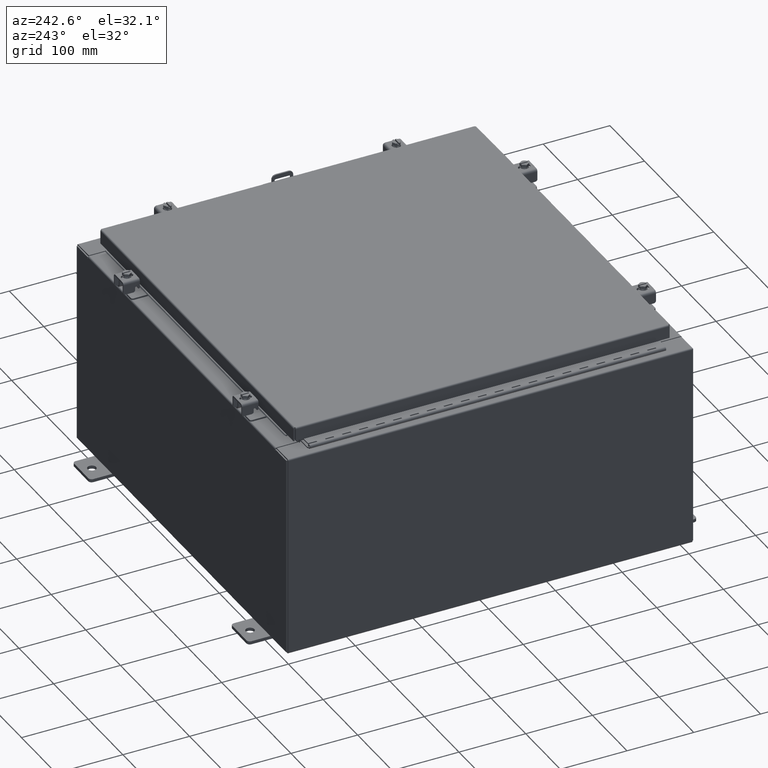
[diagram: clean part render]
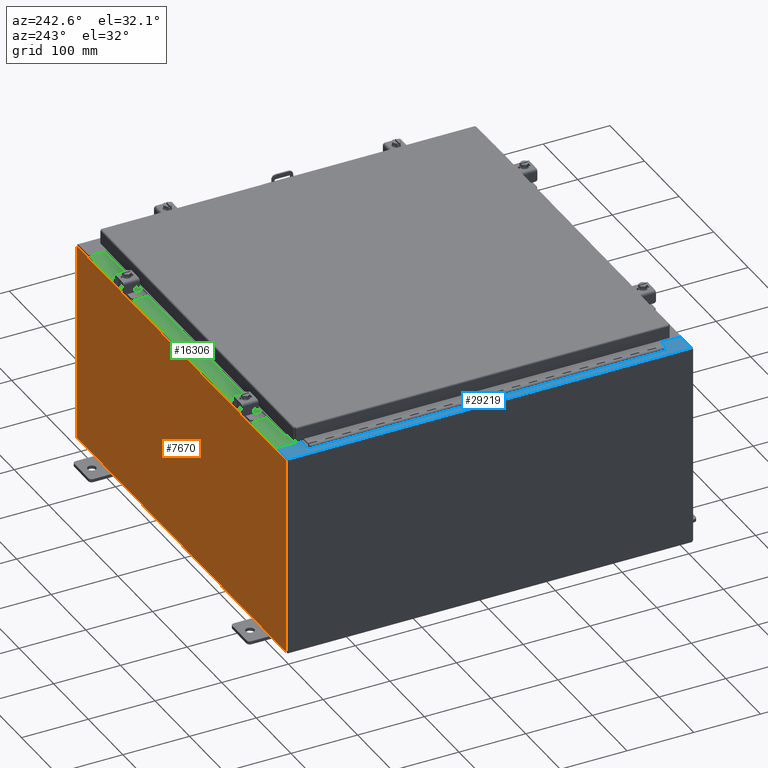
[diagram: same view with three faces highlighted in distinct colors, each labeled with its STEP entity id]
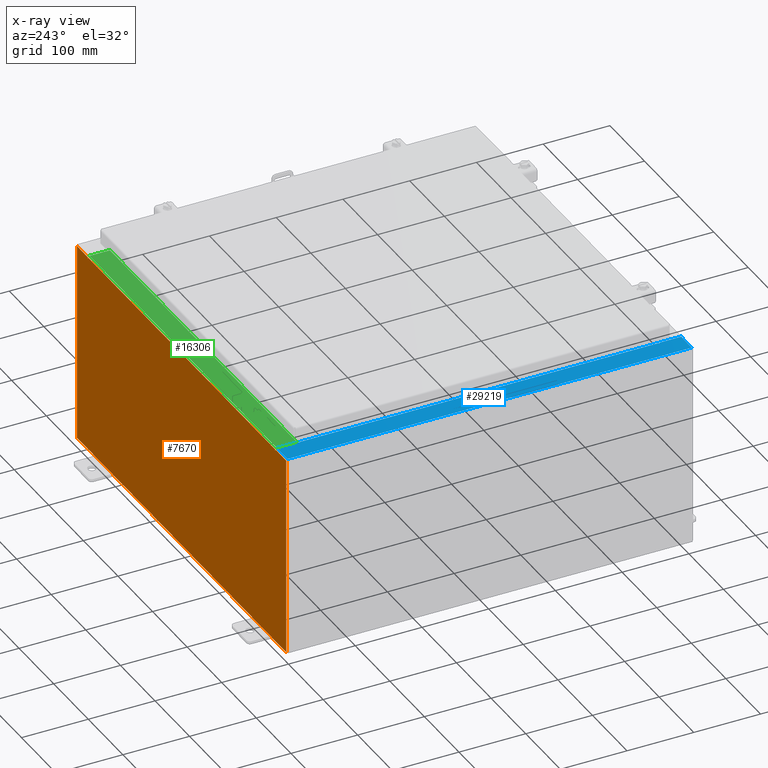
[diagram: x-ray of the same camera — body ghosted, the three highlighted faces saturated]
A machine part, auxiliary view with three faces highlighted in distinct colors.
The next image is the same camera in x-ray (body ghosted, the three faces saturated) — at least one of them is partly hidden behind the body in this view.
Their STEP definitions:

[orange] entity #7670 — the highlighted planar face has unit normal (0, -1, 0).
#633 = CARTESIAN_POINT ( 'NONE',  ( 11.92530000000000000, 0.0000000000000000000, 5.925300000000001800 ) ) ;
#679 = CARTESIAN_POINT ( 'NONE',  ( 10.63720000000000400, 0.0000000000000000000, 5.912300000000001000 ) ) ;
#1123 = CARTESIAN_POINT ( 'NONE',  ( -10.67455000000000200, 0.0000000000000000000, 5.874950000000001000 ) ) ;
#1691 = LINE ( 'NONE', #21944, #2434 ) ;
#1964 = CARTESIAN_POINT ( 'NONE',  ( 10.67455000000000200, 0.0000000000000000000, 5.925300000000001800 ) ) ;
#2021 = CARTESIAN_POINT ( 'NONE',  ( -10.67455000000000200, -0.0000000000000000000, 0.0000000000000000000 ) ) ;
#2077 = CIRCLE ( 'NONE', #12906, 0.01867499999999949400 ) ;
#2183 = EDGE_CURVE ( 'NONE', #28677, #2289, #12509, .T. ) ;
#2286 = EDGE_CURVE ( 'NONE', #28677, #11795, #29342, .T. ) ;
#2289 = VERTEX_POINT ( 'NONE', #7420 ) ;
#2434 = VECTOR ( 'NONE', #4468, 39.37007874015748100 ) ;
#2761 = VERTEX_POINT ( 'NONE', #9044 ) ;
#3167 = ORIENTED_EDGE ( 'NONE', *, *, #22473, .T. ) ;
#3430 = DIRECTION ( 'NONE',  ( 0.0000000000000000000, 0.0000000000000000000, 1.000000000000000000 ) ) ;
#3511 = DIRECTION ( 'NONE',  ( 1.000000000000000000, 0.0000000000000000000, 4.581600452255731000E-017 ) ) ;
#3724 = DIRECTION ( 'NONE',  ( 0.0000000000000000000, 0.0000000000000000000, -1.000000000000000000 ) ) ;
#4163 = CIRCLE ( 'NONE', #6991, 0.01867499999999949400 ) ;
#4232 = EDGE_CURVE ( 'NONE', #2289, #18012, #4163, .T. ) ;
#4395 = FACE_OUTER_BOUND ( 'NONE', #7921, .T. ) ;
#4468 = DIRECTION ( 'NONE',  ( -0.0000000000000000000, -0.0000000000000000000, 1.000000000000000000 ) ) ;
#4641 = ORIENTED_EDGE ( 'NONE', *, *, #31382, .T. ) ;
#4887 = EDGE_CURVE ( 'NONE', #2761, #18634, #6084, .T. ) ;
#5821 = CARTESIAN_POINT ( 'NONE',  ( -11.92530000000000000, 0.0000000000000000000, 5.925300000000000000 ) ) ;
#6063 = DIRECTION ( 'NONE',  ( 1.000000000000000000, 0.0000000000000000000, 0.0000000000000000000 ) ) ;
#6084 = LINE ( 'NONE', #8697, #18566 ) ;
#6146 = CARTESIAN_POINT ( 'NONE',  ( -10.63720000000000400, -0.0000000000000000000, 0.0000000000000000000 ) ) ;
#6991 = AXIS2_PLACEMENT_3D ( 'NONE', #24714, #28069, #22393 ) ;
#7324 = EDGE_CURVE ( 'NONE', #27155, #13650, #2077, .T. ) ;
#7420 = CARTESIAN_POINT ( 'NONE',  ( 10.67455000000000200, 0.0000000000000000000, 5.874950000000001000 ) ) ;
#7670 = ADVANCED_FACE ( 'NONE', ( #4395 ), #17274, .F. ) ;
#7921 = EDGE_LOOP ( 'NONE', ( #20355, #21059, #8593, #28065, #10799, #32113, #26033, #13954, #3167, #24356, #26104, #4641 ) ) ;
#8593 = ORIENTED_EDGE ( 'NONE', *, *, #26380, .F. ) ;
#8697 = CARTESIAN_POINT ( 'NONE',  ( -11.92530000000000000, 0.0000000000000000000, -5.925299999999999100 ) ) ;
#9044 = CARTESIAN_POINT ( 'NONE',  ( 11.92530000000000000, 0.0000000000000000000, -5.925299999999999100 ) ) ;
#9082 = CARTESIAN_POINT ( 'NONE',  ( -11.92530000000000000, 0.0000000000000000000, 5.925300000000000000 ) ) ;
#10604 = DIRECTION ( 'NONE',  ( 1.000000000000000000, 0.0000000000000000000, 4.581600452255731000E-017 ) ) ;
#10799 = ORIENTED_EDGE ( 'NONE', *, *, #27759, .F. ) ;
#11582 = VERTEX_POINT ( 'NONE', #22263 ) ;
#11795 = VERTEX_POINT ( 'NONE', #633 ) ;
#12112 = LINE ( 'NONE', #21753, #23843 ) ;
#12509 = LINE ( 'NONE', #25550, #31762 ) ;
#12906 = AXIS2_PLACEMENT_3D ( 'NONE', #29683, #29645, #29606 ) ;
#12918 = DIRECTION ( 'NONE',  ( -1.000000000000000000, -0.0000000000000000000, -0.0000000000000000000 ) ) ;
#12994 = EDGE_CURVE ( 'NONE', #15599, #19428, #26759, .T. ) ;
#13650 = VERTEX_POINT ( 'NONE', #1123 ) ;
#13954 = ORIENTED_EDGE ( 'NONE', *, *, #2286, .T. ) ;
#14175 = VECTOR ( 'NONE', #3511, 39.37007874015748100 ) ;
#14193 = CARTESIAN_POINT ( 'NONE',  ( -11.92530000000000000, 0.0000000000000000000, 5.925300000000000000 ) ) ;
#15306 = CARTESIAN_POINT ( 'NONE',  ( -10.63720000000000400, -1.707404996040164500E-016, 5.912300000000001000 ) ) ;
#15599 = VERTEX_POINT ( 'NONE', #15306 ) ;
#16017 = VECTOR ( 'NONE', #10604, 39.37007874015748100 ) ;
#17176 = DIRECTION ( 'NONE',  ( 0.0000000000000000000, -0.0000000000000000000, -1.000000000000000000 ) ) ;
#17274 = PLANE ( 'NONE',  #31057 ) ;
#17346 = CARTESIAN_POINT ( 'NONE',  ( 0.0000000000000000000, 0.0000000000000000000, 0.0000000000000000000 ) ) ;
#17456 = VECTOR ( 'NONE', #32046, 39.37007874015748100 ) ;
#17962 = DIRECTION ( 'NONE',  ( 0.0000000000000000000, -1.000000000000000000, 0.0000000000000000000 ) ) ;
#18012 = VERTEX_POINT ( 'NONE', #18515 ) ;
#18242 = LINE ( 'NONE', #2021, #17456 ) ;
#18489 = CARTESIAN_POINT ( 'NONE',  ( -10.63720000000000400, -1.707404996040164500E-016, 5.912300000000001000 ) ) ;
#18515 = CARTESIAN_POINT ( 'NONE',  ( 10.63720000000000400, 0.0000000000000000000, 5.874950000000001000 ) ) ;
#18566 = VECTOR ( 'NONE', #12918, 39.37007874015748100 ) ;
#18634 = VERTEX_POINT ( 'NONE', #24535 ) ;
#19292 = VECTOR ( 'NONE', #6063, 39.37007874015748100 ) ;
#19428 = VERTEX_POINT ( 'NONE', #679 ) ;
#19773 = VECTOR ( 'NONE', #3724, 39.37007874015748100 ) ;
#20355 = ORIENTED_EDGE ( 'NONE', *, *, #25955, .F. ) ;
#20871 = CARTESIAN_POINT ( 'NONE',  ( 10.63720000000000400, 0.0000000000000000000, 0.0000000000000000000 ) ) ;
#21059 = ORIENTED_EDGE ( 'NONE', *, *, #7324, .F. ) ;
#21753 = CARTESIAN_POINT ( 'NONE',  ( 11.92530000000000000, 0.0000000000000000000, 5.925300000000001800 ) ) ;
#21944 = CARTESIAN_POINT ( 'NONE',  ( -11.92530000000000000, 0.0000000000000000000, 5.925300000000000000 ) ) ;
#22263 = CARTESIAN_POINT ( 'NONE',  ( -10.67455000000000200, 0.0000000000000000000, 5.925300000000000000 ) ) ;
#22393 = DIRECTION ( 'NONE',  ( 0.0000000000000000000, 0.0000000000000000000, -1.000000000000000000 ) ) ;
#22473 = EDGE_CURVE ( 'NONE', #11795, #2761, #12112, .T. ) ;
#23843 = VECTOR ( 'NONE', #29334, 39.37007874015748100 ) ;
#24356 = ORIENTED_EDGE ( 'NONE', *, *, #4887, .T. ) ;
#24535 = CARTESIAN_POINT ( 'NONE',  ( -11.92530000000000000, 0.0000000000000000000, -5.925299999999999100 ) ) ;
#24714 = CARTESIAN_POINT ( 'NONE',  ( 10.65587500000000200, 0.0000000000000000000, 5.874950000000001000 ) ) ;
#25550 = CARTESIAN_POINT ( 'NONE',  ( 10.67455000000000200, 0.0000000000000000000, 0.0000000000000000000 ) ) ;
#25955 = EDGE_CURVE ( 'NONE', #13650, #11582, #18242, .T. ) ;
#26033 = ORIENTED_EDGE ( 'NONE', *, *, #2183, .F. ) ;
#26104 = ORIENTED_EDGE ( 'NONE', *, *, #31663, .T. ) ;
#26380 = EDGE_CURVE ( 'NONE', #15599, #27155, #27233, .T. ) ;
#26389 = VECTOR ( 'NONE', #3430, 39.37007874015748100 ) ;
#26759 = LINE ( 'NONE', #18489, #19292 ) ;
#26830 = DIRECTION ( 'NONE',  ( 0.0000000000000000000, 0.0000000000000000000, -1.000000000000000000 ) ) ;
#27150 = LINE ( 'NONE', #20871, #26389 ) ;
#27155 = VERTEX_POINT ( 'NONE', #30495 ) ;
#27233 = LINE ( 'NONE', #6146, #19773 ) ;
#27432 = LINE ( 'NONE', #5821, #14175 ) ;
#27759 = EDGE_CURVE ( 'NONE', #18012, #19428, #27150, .T. ) ;
#28065 = ORIENTED_EDGE ( 'NONE', *, *, #12994, .T. ) ;
#28069 = DIRECTION ( 'NONE',  ( -0.0000000000000000000, 1.000000000000000000, -0.0000000000000000000 ) ) ;
#28677 = VERTEX_POINT ( 'NONE', #1964 ) ;
#29334 = DIRECTION ( 'NONE',  ( 0.0000000000000000000, 0.0000000000000000000, -1.000000000000000000 ) ) ;
#29342 = LINE ( 'NONE', #9082, #16017 ) ;
#29606 = DIRECTION ( 'NONE',  ( 0.0000000000000000000, 0.0000000000000000000, -1.000000000000000000 ) ) ;
#29645 = DIRECTION ( 'NONE',  ( -0.0000000000000000000, 1.000000000000000000, -0.0000000000000000000 ) ) ;
#29683 = CARTESIAN_POINT ( 'NONE',  ( -10.65587500000000200, 0.0000000000000000000, 5.874950000000001000 ) ) ;
#30495 = CARTESIAN_POINT ( 'NONE',  ( -10.63720000000000400, -0.0000000000000000000, 5.874950000000001000 ) ) ;
#31057 = AXIS2_PLACEMENT_3D ( 'NONE', #17346, #17962, #17176 ) ;
#31382 = EDGE_CURVE ( 'NONE', #32302, #11582, #27432, .T. ) ;
#31663 = EDGE_CURVE ( 'NONE', #18634, #32302, #1691, .T. ) ;
#31762 = VECTOR ( 'NONE', #26830, 39.37007874015748100 ) ;
#32046 = DIRECTION ( 'NONE',  ( 0.0000000000000000000, 0.0000000000000000000, 1.000000000000000000 ) ) ;
#32113 = ORIENTED_EDGE ( 'NONE', *, *, #4232, .F. ) ;
#32302 = VERTEX_POINT ( 'NONE', #14193 ) ;

[blue] entity #29219 — the highlighted planar face has unit normal (0, 0, -1).
#229 = ORIENTED_EDGE ( 'NONE', *, *, #5740, .F. ) ;
#248 = VERTEX_POINT ( 'NONE', #26468 ) ;
#249 = EDGE_CURVE ( 'NONE', #30464, #4828, #28888, .T. ) ;
#319 = VECTOR ( 'NONE', #19858, 39.37007874015748100 ) ;
#890 = CARTESIAN_POINT ( 'NONE',  ( -10.69970000000004600, 0.0000000000000000000, 11.92530000000000900 ) ) ;
#1139 = CIRCLE ( 'NONE', #1538, 0.01867499999999949400 ) ;
#1194 = CARTESIAN_POINT ( 'NONE',  ( -10.75005000000004600, -10.61242499999998900, 11.92530000000000900 ) ) ;
#1455 = CIRCLE ( 'NONE', #16562, 0.01867499999999949400 ) ;
#1538 = AXIS2_PLACEMENT_3D ( 'NONE', #20653, #5714, #23183 ) ;
#1936 = ORIENTED_EDGE ( 'NONE', *, *, #30613, .F. ) ;
#2038 = FACE_OUTER_BOUND ( 'NONE', #14360, .T. ) ;
#2075 = VECTOR ( 'NONE', #15018, 39.37007874015748100 ) ;
#2929 = LINE ( 'NONE', #6162, #23666 ) ;
#3380 = EDGE_CURVE ( 'NONE', #11300, #248, #6980, .T. ) ;
#3454 = ORIENTED_EDGE ( 'NONE', *, *, #29986, .T. ) ;
#3668 = DIRECTION ( 'NONE',  ( 1.000000000000000000, 0.0000000000000000000, 0.0000000000000000000 ) ) ;
#4301 = DIRECTION ( 'NONE',  ( -1.000000000000000000, 0.0000000000000000000, 0.0000000000000000000 ) ) ;
#4828 = VERTEX_POINT ( 'NONE', #14782 ) ;
#5071 = CARTESIAN_POINT ( 'NONE',  ( -10.69970000000004600, -10.63109999999999100, 11.92530000000000900 ) ) ;
#5493 = EDGE_CURVE ( 'NONE', #15499, #26307, #23285, .T. ) ;
#5714 = DIRECTION ( 'NONE',  ( -7.132762385546384700E-015, -0.0000000000000000000, 1.000000000000000000 ) ) ;
#5740 = EDGE_CURVE ( 'NONE', #32040, #14769, #2929, .T. ) ;
#6162 = CARTESIAN_POINT ( 'NONE',  ( -10.71270000000004800, -10.59374999999998900, 11.92530000000000900 ) ) ;
#6362 = CARTESIAN_POINT ( 'NONE',  ( -10.75005000000004600, 10.59374999999999800, 11.92530000000000900 ) ) ;
#6425 = PLANE ( 'NONE',  #20129 ) ;
#6538 = EDGE_CURVE ( 'NONE', #15499, #11768, #22431, .T. ) ;
#6739 = ORIENTED_EDGE ( 'NONE', *, *, #22084, .F. ) ;
#6980 = LINE ( 'NONE', #18098, #319 ) ;
#7224 = LINE ( 'NONE', #890, #20460 ) ;
#7865 = ORIENTED_EDGE ( 'NONE', *, *, #5493, .T. ) ;
#8155 = VECTOR ( 'NONE', #28227, 39.37007874015748100 ) ;
#8246 = LINE ( 'NONE', #12503, #14862 ) ;
#8742 = LINE ( 'NONE', #27475, #2075 ) ;
#9020 = ORIENTED_EDGE ( 'NONE', *, *, #3380, .F. ) ;
#9188 = VECTOR ( 'NONE', #26351, 39.37007874015748100 ) ;
#9250 = ORIENTED_EDGE ( 'NONE', *, *, #19492, .T. ) ;
#9391 = EDGE_CURVE ( 'NONE', #14431, #11300, #1139, .T. ) ;
#10774 = ORIENTED_EDGE ( 'NONE', *, *, #19105, .F. ) ;
#11300 = VERTEX_POINT ( 'NONE', #6362 ) ;
#11439 = CARTESIAN_POINT ( 'NONE',  ( -8.532114493236847900E-014, 0.0000000000000000000, 11.92530000000008500 ) ) ;
#11768 = VERTEX_POINT ( 'NONE', #20382 ) ;
#11889 = VECTOR ( 'NONE', #17656, 39.37007874015748100 ) ;
#12503 = CARTESIAN_POINT ( 'NONE',  ( -10.71270000000004800, 10.59374999999999300, 11.92530000000000900 ) ) ;
#12827 = DIRECTION ( 'NONE',  ( -1.000000000000000000, 0.0000000000000000000, 0.0000000000000000000 ) ) ;
#13464 = CARTESIAN_POINT ( 'NONE',  ( -10.69970000000004600, -11.92530000000000000, 11.92530000000000900 ) ) ;
#13964 = DIRECTION ( 'NONE',  ( -1.000000000000000000, 0.0000000000000000000, -7.132762385546384700E-015 ) ) ;
#13988 = VERTEX_POINT ( 'NONE', #27311 ) ;
#14360 = EDGE_LOOP ( 'NONE', ( #10774, #15961, #3454, #14557, #7865, #9250, #1936, #25093, #229, #6739, #9020, #26624 ) ) ;
#14431 = VERTEX_POINT ( 'NONE', #29062 ) ;
#14557 = ORIENTED_EDGE ( 'NONE', *, *, #6538, .F. ) ;
#14769 = VERTEX_POINT ( 'NONE', #25863 ) ;
#14782 = CARTESIAN_POINT ( 'NONE',  ( -10.69970000000004600, 11.92529999999999800, 11.92530000000000900 ) ) ;
#14862 = VECTOR ( 'NONE', #15014, 39.37007874015748100 ) ;
#15014 = DIRECTION ( 'NONE',  ( -0.0000000000000000000, -1.000000000000000000, -0.0000000000000000000 ) ) ;
#15018 = DIRECTION ( 'NONE',  ( 1.000000000000000000, 0.0000000000000000000, 0.0000000000000000000 ) ) ;
#15499 = VERTEX_POINT ( 'NONE', #26378 ) ;
#15961 = ORIENTED_EDGE ( 'NONE', *, *, #249, .T. ) ;
#16154 = CARTESIAN_POINT ( 'NONE',  ( -8.532114493236847900E-014, -11.92530000000000000, 11.92530000000008500 ) ) ;
#16562 = AXIS2_PLACEMENT_3D ( 'NONE', #1194, #18624, #3668 ) ;
#16969 = CARTESIAN_POINT ( 'NONE',  ( -10.69970000000004600, 10.63109999999999600, 11.92530000000000900 ) ) ;
#17357 = LINE ( 'NONE', #19246, #24840 ) ;
#17656 = DIRECTION ( 'NONE',  ( -1.000000000000000000, 0.0000000000000000000, -7.132762385546384700E-015 ) ) ;
#18034 = EDGE_CURVE ( 'NONE', #14769, #13988, #1455, .T. ) ;
#18098 = CARTESIAN_POINT ( 'NONE',  ( -10.75005000000004600, 10.59374999999999800, 11.92530000000000900 ) ) ;
#18341 = DIRECTION ( 'NONE',  ( 0.0000000000000000000, 1.000000000000000000, 0.0000000000000000000 ) ) ;
#18624 = DIRECTION ( 'NONE',  ( -7.132762385546384700E-015, -0.0000000000000000000, 1.000000000000000000 ) ) ;
#19105 = EDGE_CURVE ( 'NONE', #30464, #14431, #17357, .T. ) ;
#19246 = CARTESIAN_POINT ( 'NONE',  ( -10.69970000000004600, 10.63109999999999600, 11.92530000000000900 ) ) ;
#19492 = EDGE_CURVE ( 'NONE', #26307, #22139, #7224, .T. ) ;
#19635 = DIRECTION ( 'NONE',  ( 1.000000000000000000, -0.0000000000000000000, 7.132762385546384700E-015 ) ) ;
#19858 = DIRECTION ( 'NONE',  ( 1.000000000000000000, 0.0000000000000000000, 0.0000000000000000000 ) ) ;
#20129 = AXIS2_PLACEMENT_3D ( 'NONE', #11439, #28953, #13964 ) ;
#20382 = CARTESIAN_POINT ( 'NONE',  ( -11.91230000000004500, 11.92529999999999800, 11.92530000000000000 ) ) ;
#20460 = VECTOR ( 'NONE', #18341, 39.37007874015748100 ) ;
#20476 = CARTESIAN_POINT ( 'NONE',  ( -11.91230000000004500, 11.92529999999999800, 11.92530000000000000 ) ) ;
#20653 = CARTESIAN_POINT ( 'NONE',  ( -10.75005000000004600, 10.61242499999999800, 11.92530000000000900 ) ) ;
#20812 = CARTESIAN_POINT ( 'NONE',  ( -10.71270000000004800, -10.59374999999998900, 11.92530000000000900 ) ) ;
#22084 = EDGE_CURVE ( 'NONE', #248, #32040, #8246, .T. ) ;
#22139 = VERTEX_POINT ( 'NONE', #5071 ) ;
#22431 = LINE ( 'NONE', #20476, #9188 ) ;
#23183 = DIRECTION ( 'NONE',  ( 1.000000000000000000, 0.0000000000000000000, 0.0000000000000000000 ) ) ;
#23285 = LINE ( 'NONE', #16154, #29959 ) ;
#23666 = VECTOR ( 'NONE', #12827, 39.37007874015748100 ) ;
#24840 = VECTOR ( 'NONE', #4301, 39.37007874015748100 ) ;
#25093 = ORIENTED_EDGE ( 'NONE', *, *, #18034, .F. ) ;
#25395 = CARTESIAN_POINT ( 'NONE',  ( -10.69970000000004600, 0.0000000000000000000, 11.92530000000000900 ) ) ;
#25863 = CARTESIAN_POINT ( 'NONE',  ( -10.75005000000004600, -10.59374999999998900, 11.92530000000000900 ) ) ;
#26307 = VERTEX_POINT ( 'NONE', #13464 ) ;
#26351 = DIRECTION ( 'NONE',  ( -0.0000000000000000000, 1.000000000000000000, -0.0000000000000000000 ) ) ;
#26378 = CARTESIAN_POINT ( 'NONE',  ( -11.91230000000004500, -11.92530000000000000, 11.92530000000000000 ) ) ;
#26468 = CARTESIAN_POINT ( 'NONE',  ( -10.71270000000004800, 10.59374999999999800, 11.92530000000000900 ) ) ;
#26624 = ORIENTED_EDGE ( 'NONE', *, *, #9391, .F. ) ;
#27311 = CARTESIAN_POINT ( 'NONE',  ( -10.75005000000004600, -10.63109999999998800, 11.92530000000000900 ) ) ;
#27475 = CARTESIAN_POINT ( 'NONE',  ( -10.75005000000004600, -10.63109999999998800, 11.92530000000000900 ) ) ;
#28227 = DIRECTION ( 'NONE',  ( 0.0000000000000000000, 1.000000000000000000, 0.0000000000000000000 ) ) ;
#28888 = LINE ( 'NONE', #25395, #8155 ) ;
#28953 = DIRECTION ( 'NONE',  ( 7.132762385546384700E-015, 0.0000000000000000000, -1.000000000000000000 ) ) ;
#29062 = CARTESIAN_POINT ( 'NONE',  ( -10.75005000000004600, 10.63109999999999600, 11.92530000000000900 ) ) ;
#29219 = ADVANCED_FACE ( 'NONE', ( #2038 ), #6425, .F. ) ;
#29959 = VECTOR ( 'NONE', #19635, 39.37007874015748100 ) ;
#29986 = EDGE_CURVE ( 'NONE', #4828, #11768, #31915, .T. ) ;
#30164 = CARTESIAN_POINT ( 'NONE',  ( -8.532114493236847900E-014, 11.92529999999999800, 11.92530000000008500 ) ) ;
#30464 = VERTEX_POINT ( 'NONE', #16969 ) ;
#30613 = EDGE_CURVE ( 'NONE', #13988, #22139, #8742, .T. ) ;
#31915 = LINE ( 'NONE', #30164, #11889 ) ;
#32040 = VERTEX_POINT ( 'NONE', #20812 ) ;

[green] entity #16306 — the highlighted planar face has unit normal (0, 0, 1).
#611 = EDGE_LOOP ( 'NONE', ( #11649, #18594, #16427, #10653 ) ) ;
#627 = CARTESIAN_POINT ( 'NONE',  ( 10.63720000000000200, -1.287299999999998800, 6.000000000000006200 ) ) ;
#628 = CARTESIAN_POINT ( 'NONE',  ( -3.422455537835030400E-018, 1.610972251716582100E-014, 6.000000000000001800 ) ) ;
#836 = CARTESIAN_POINT ( 'NONE',  ( 10.63720000000000400, -1.287299999999998800, 6.000000000000003600 ) ) ;
#1406 = VERTEX_POINT ( 'NONE', #31317 ) ;
#3441 = LINE ( 'NONE', #6820, #23378 ) ;
#4644 = CARTESIAN_POINT ( 'NONE',  ( -3.422455537835030400E-018, -0.08770000000000026400, 6.000000000000001800 ) ) ;
#4758 = VECTOR ( 'NONE', #17078, 39.37007874015748100 ) ;
#5211 = CARTESIAN_POINT ( 'NONE',  ( -10.63720000000000200, -1.287299999999998100, 6.000000000000004400 ) ) ;
#5649 = DIRECTION ( 'NONE',  ( 0.0000000000000000000, -1.000000000000000000, 2.674785894579892700E-015 ) ) ;
#6820 = CARTESIAN_POINT ( 'NONE',  ( -10.63720000000000200, -0.07469999999999973900, 6.000000000000001800 ) ) ;
#7863 = DIRECTION ( 'NONE',  ( -0.0000000000000000000, -1.000000000000000000, 3.566381192773190000E-015 ) ) ;
#8380 = DIRECTION ( 'NONE',  ( -1.000000000000000000, 0.0000000000000000000, 0.0000000000000000000 ) ) ;
#10350 = CARTESIAN_POINT ( 'NONE',  ( 10.63720000000000200, -1.300299999999999800, 6.000000000000006200 ) ) ;
#10653 = ORIENTED_EDGE ( 'NONE', *, *, #29384, .T. ) ;
#11085 = VECTOR ( 'NONE', #7863, 39.37007874015748100 ) ;
#11649 = ORIENTED_EDGE ( 'NONE', *, *, #17184, .F. ) ;
#12385 = EDGE_CURVE ( 'NONE', #18234, #28890, #24058, .T. ) ;
#13294 = VERTEX_POINT ( 'NONE', #29779 ) ;
#16306 = ADVANCED_FACE ( 'NONE', ( #32456 ), #18079, .T. ) ;
#16427 = ORIENTED_EDGE ( 'NONE', *, *, #30042, .F. ) ;
#17078 = DIRECTION ( 'NONE',  ( -1.000000000000000000, 0.0000000000000000000, 0.0000000000000000000 ) ) ;
#17184 = EDGE_CURVE ( 'NONE', #28890, #13294, #3441, .T. ) ;
#18079 = PLANE ( 'NONE',  #25984 ) ;
#18234 = VERTEX_POINT ( 'NONE', #627 ) ;
#18594 = ORIENTED_EDGE ( 'NONE', *, *, #12385, .F. ) ;
#20578 = DIRECTION ( 'NONE',  ( 0.0000000000000000000, 2.674785894579892700E-015, 1.000000000000000000 ) ) ;
#23242 = VECTOR ( 'NONE', #8380, 39.37007874015748100 ) ;
#23378 = VECTOR ( 'NONE', #26796, 39.37007874015748100 ) ;
#24058 = LINE ( 'NONE', #836, #23242 ) ;
#24411 = LINE ( 'NONE', #10350, #11085 ) ;
#25511 = LINE ( 'NONE', #4644, #4758 ) ;
#25984 = AXIS2_PLACEMENT_3D ( 'NONE', #628, #20578, #5649 ) ;
#26796 = DIRECTION ( 'NONE',  ( -0.0000000000000000000, 1.000000000000000000, -2.674785894579892700E-015 ) ) ;
#28890 = VERTEX_POINT ( 'NONE', #5211 ) ;
#29384 = EDGE_CURVE ( 'NONE', #1406, #13294, #25511, .T. ) ;
#29779 = CARTESIAN_POINT ( 'NONE',  ( -10.63720000000000200, -0.08770000000000026400, 6.000000000000001800 ) ) ;
#30042 = EDGE_CURVE ( 'NONE', #1406, #18234, #24411, .T. ) ;
#31317 = CARTESIAN_POINT ( 'NONE',  ( 10.63720000000000400, -0.08770000000000002800, 6.000000000000001800 ) ) ;
#32456 = FACE_OUTER_BOUND ( 'NONE', #611, .T. ) ;